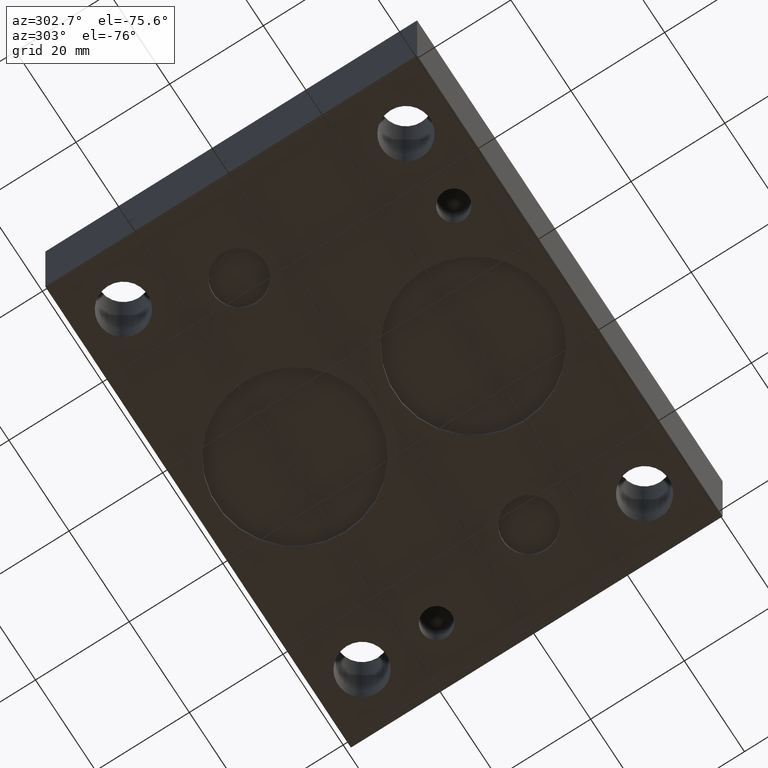
[diagram: clean part render]
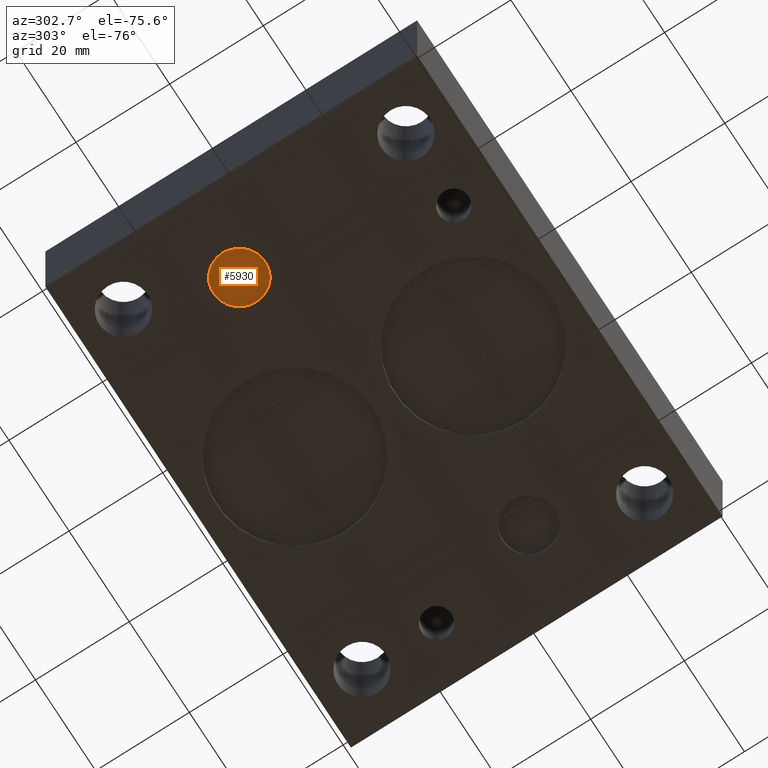
[diagram: same view with one face highlighted and labeled with its STEP entity id]
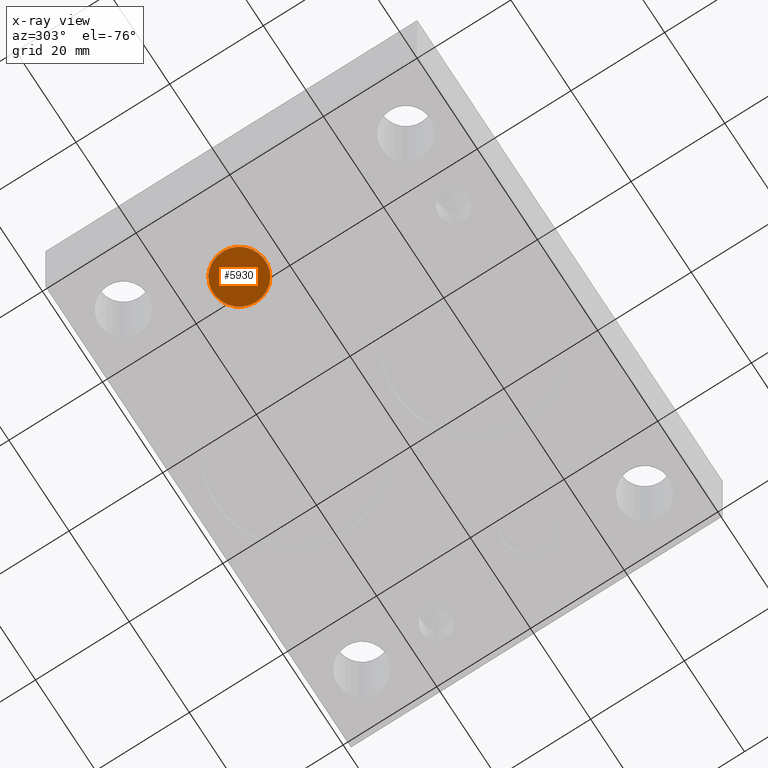
[diagram: x-ray of the same camera — body ghosted, the highlighted face saturated]
A machine part, auxiliary view. The second image highlights one B-rep face of the part: STEP entity #5930.
The next image is the same camera in x-ray: the body ghosted, the highlighted face saturated — about 0% of this face is hidden behind the body in this view.
In plain terms, the highlighted planar face has unit normal (0, 0, -1).
Its self-contained STEP definition (entity closure, byte-faithful):
#22=CIRCLE('',#6168,5.5626);
#23=CIRCLE('',#6169,5.5626);
#298=PLANE('',#6170);
#585=FACE_OUTER_BOUND('',#907,.T.);
#907=EDGE_LOOP('',(#5201,#5202));
#2840=VERTEX_POINT('',#9920);
#2841=VERTEX_POINT('',#9922);
#3638=EDGE_CURVE('',#2841,#2840,#22,.T.);
#3639=EDGE_CURVE('',#2840,#2841,#23,.T.);
#5201=ORIENTED_EDGE('',*,*,#3638,.T.);
#5202=ORIENTED_EDGE('',*,*,#3639,.T.);
#5930=ADVANCED_FACE('',(#585),#298,.T.);
#6168=AXIS2_PLACEMENT_3D('',#9923,#7227,#7228);
#6169=AXIS2_PLACEMENT_3D('',#9924,#7229,#7230);
#6170=AXIS2_PLACEMENT_3D('',#9925,#7231,#7232);
#7227=DIRECTION('center_axis',(0.,0.,-1.));
#7228=DIRECTION('ref_axis',(1.,0.,0.));
#7229=DIRECTION('center_axis',(0.,0.,-1.));
#7230=DIRECTION('ref_axis',(1.,0.,0.));
#7231=DIRECTION('center_axis',(0.,0.,-1.));
#7232=DIRECTION('ref_axis',(1.,0.,0.));
#9920=CARTESIAN_POINT('',(11.938,49.1998,1.016));
#9922=CARTESIAN_POINT('',(23.0632,49.1998,1.016));
#9923=CARTESIAN_POINT('Origin',(17.5006,49.1998,1.016));
#9924=CARTESIAN_POINT('Origin',(17.5006,49.1998,1.016));
#9925=CARTESIAN_POINT('Origin',(17.5006,49.1998,1.016));